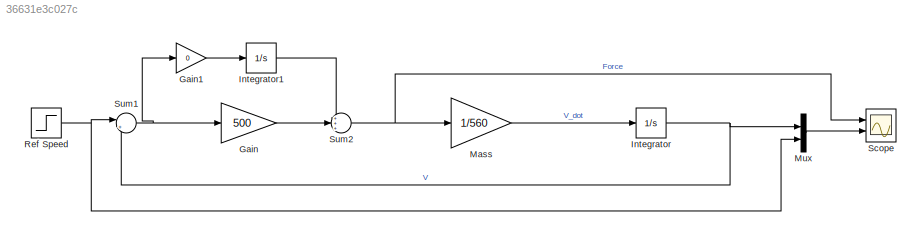
MODEL slx_36631e3c027c
KIND model
CONFIG AbsTol = auto
CONFIG EnableMultiTasking = off
CONFIG FixedStep = auto
CONFIG MaxStep = auto
CONFIG MinStep = auto
CONFIG RelTol = 1e-3
CONFIG SampleTimeConstraint = Unconstrained
CONFIG SolverName = VariableStepAuto
CONFIG StartTime = 0.0
CONFIG StopTime = 10
BLOCK [Gain] Gain
  Gain = 500
BLOCK [Gain] Gain1
  Gain = 0
BLOCK [Integrator] Integrator
  Ports = [1, 1]
BLOCK [Integrator] Integrator1
  Ports = [1, 1]
BLOCK [Gain] Mass
  Gain = 1/560
BLOCK [Mux] Mux
  DisplayOption = bar
  Inputs = 2
  Ports = [2, 1]
BLOCK [Step] Ref Speed
  After = 250
  SampleTime = 0
  Time = 0
BLOCK [Scope] Scope
  Floating = off
  NumInputPorts = 2
  Ports = [2]
  ScopeSpecificationString = Simulink.scopes.TimeScopeBlockCfg('CurrentConfiguration', extmgr.ConfigurationSet(extmgr.Configuration('Core','General UI',true),extmgr.Configuration('Core','Source UI',true),extmgr.Configuration('Sources','WiredSimulink',true),extmgr.Configuration('Visuals','Time Domain',true,'SerializedDisplays',{struct('MinYLimReal','-15606.36053','MaxYLimReal','140622.92895','YLabelReal','','MinYLimMag','   0....<+2070ch>
BLOCK [Sum] Sum1
  Inputs = |+-
  Ports = [2, 1]
BLOCK [Sum] Sum2
  Inputs = +++
  Ports = [3, 1]
LINE Gain1:1 -> Integrator1:1
LINE Gain:1 -> Sum2:2
LINE Integrator1:1 -> Sum2:1
NET Integrator:1 -> Mux:1, Sum1:2
LINE Mass:1 -> Integrator:1
LINE Mux:1 -> Scope:2
NET Ref Speed:1 -> Mux:2, Sum1:1
NET Sum1:1 -> Gain1:1, Gain:1
NET Sum2:1 -> Mass:1, Scope:1
note: NET lines group one-source signal fan-out (src -> all destinations, sorted); 1:1 wires keep LINE
